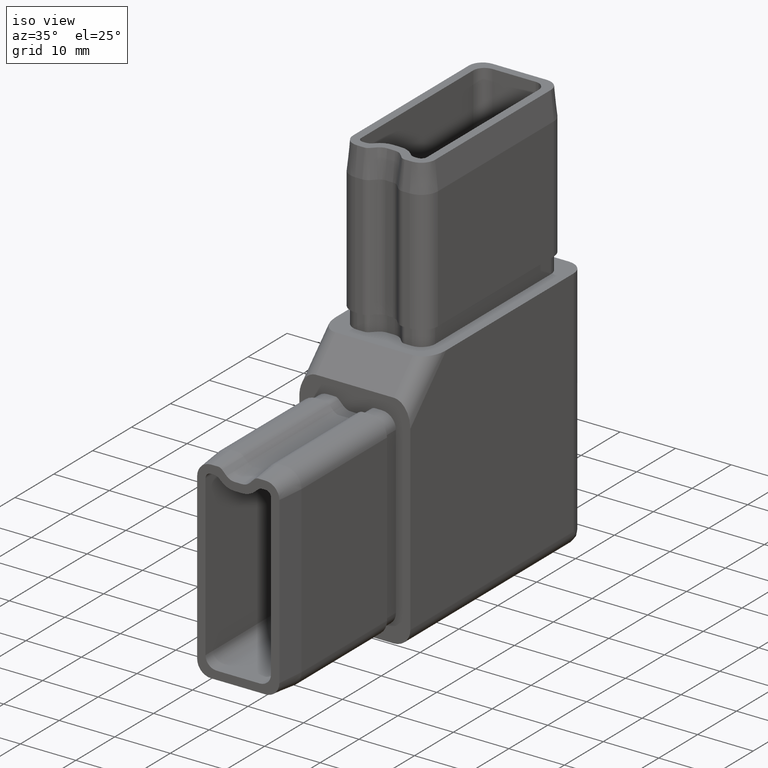
[diagram: clean part render]
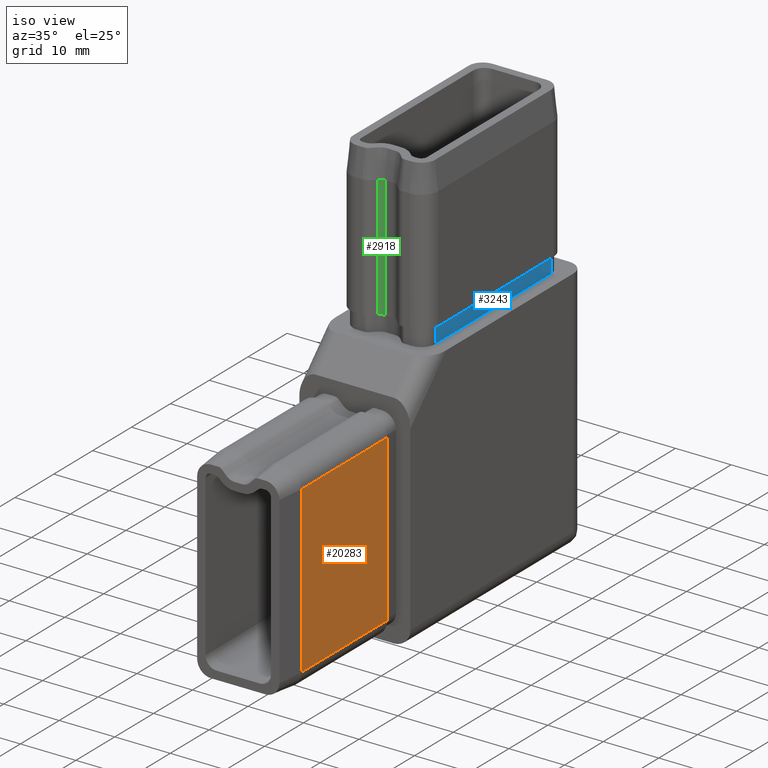
[diagram: same view with three faces highlighted in distinct colors, each labeled with its STEP entity id]
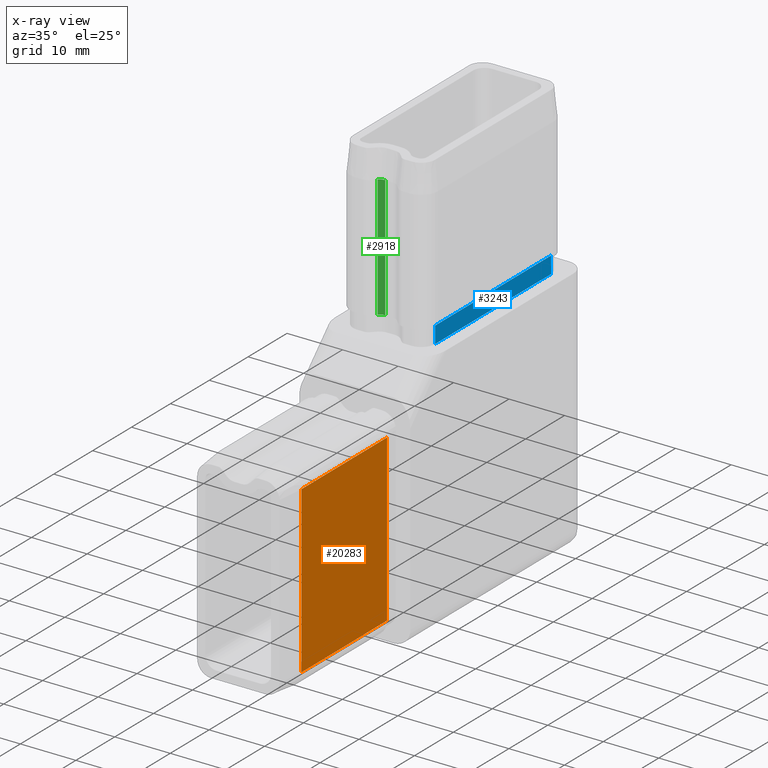
[diagram: x-ray of the same camera — body ghosted, the three highlighted faces saturated]
A machine part, iso view with three faces highlighted in distinct colors.
The next image is the same camera in x-ray (body ghosted, the three faces saturated) — at least one of them is partly hidden behind the body in this view.
Their STEP definitions:

[orange] entity #20283 — the highlighted planar face has unit normal (-1, -0, 0).
#1452 = DIRECTION ( 'NONE',  ( 2.328487887217191400E-016, 0.0000000000000000000, 1.000000000000000000 ) ) ;
#1700 = EDGE_CURVE ( 'NONE', #7561, #4065, #20508, .T. ) ;
#2318 = EDGE_LOOP ( 'NONE', ( #23774, #6665, #11239, #15677 ) ) ;
#3137 = FACE_OUTER_BOUND ( 'NONE', #2318, .T. ) ;
#4065 = VERTEX_POINT ( 'NONE', #11985 ) ;
#6151 = VERTEX_POINT ( 'NONE', #7808 ) ;
#6665 = ORIENTED_EDGE ( 'NONE', *, *, #1700, .F. ) ;
#6751 = VECTOR ( 'NONE', #14962, 1000.000000000000000 ) ;
#7561 = VERTEX_POINT ( 'NONE', #14796 ) ;
#7808 = CARTESIAN_POINT ( 'NONE',  ( 7.899999999999999500, -25.49999999999998900, -17.39999999999999900 ) ) ;
#8209 = DIRECTION ( 'NONE',  ( 2.328487887217190900E-016, -2.328487887217190900E-016, 1.000000000000000000 ) ) ;
#8353 = VECTOR ( 'NONE', #22412, 1000.000000000000000 ) ;
#8763 = CARTESIAN_POINT ( 'NONE',  ( 7.900000000000005700, -52.50000000000000000, 12.39999999999999000 ) ) ;
#8979 = LINE ( 'NONE', #8763, #8353 ) ;
#10423 = CARTESIAN_POINT ( 'NONE',  ( 7.900000000000005700, -25.49999999999999600, 12.40000000000000200 ) ) ;
#11239 = ORIENTED_EDGE ( 'NONE', *, *, #23587, .T. ) ;
#11460 = PLANE ( 'NONE',  #20751 ) ;
#11985 = CARTESIAN_POINT ( 'NONE',  ( 7.900000000000005700, -47.49999999999998600, 12.39999999999999100 ) ) ;
#14796 = CARTESIAN_POINT ( 'NONE',  ( 7.899999999999992400, -47.49999999999998600, -17.40000000000000900 ) ) ;
#14962 = DIRECTION ( 'NONE',  ( 1.746365915412893200E-016, -2.328487887217190900E-016, 1.000000000000000000 ) ) ;
#15113 = VERTEX_POINT ( 'NONE', #10423 ) ;
#15156 = EDGE_CURVE ( 'NONE', #6151, #15113, #22539, .T. ) ;
#15677 = ORIENTED_EDGE ( 'NONE', *, *, #15156, .T. ) ;
#15880 = CARTESIAN_POINT ( 'NONE',  ( 7.899999999999999500, -52.49999999999999300, -17.40000000000000900 ) ) ;
#16433 = VECTOR ( 'NONE', #8209, 1000.000000000000000 ) ;
#17868 = LINE ( 'NONE', #15880, #24605 ) ;
#20283 = ADVANCED_FACE ( 'NONE', ( #3137 ), #11460, .F. ) ;
#20508 = LINE ( 'NONE', #20929, #6751 ) ;
#20751 = AXIS2_PLACEMENT_3D ( 'NONE', #24862, #23237, #1452 ) ;
#20929 = CARTESIAN_POINT ( 'NONE',  ( 7.899999999999992400, -47.49999999999998600, -17.40000000000000900 ) ) ;
#21437 = DIRECTION ( 'NONE',  ( -0.0000000000000000000, 1.000000000000000000, 2.220446049250313100E-016 ) ) ;
#22412 = DIRECTION ( 'NONE',  ( -0.0000000000000000000, 1.000000000000000000, 2.220446049250313100E-016 ) ) ;
#22539 = LINE ( 'NONE', #23834, #16433 ) ;
#23237 = DIRECTION ( 'NONE',  ( -1.000000000000000000, -5.170281729898621200E-032, 2.328487887217191400E-016 ) ) ;
#23587 = EDGE_CURVE ( 'NONE', #7561, #6151, #17868, .T. ) ;
#23774 = ORIENTED_EDGE ( 'NONE', *, *, #25264, .F. ) ;
#23834 = CARTESIAN_POINT ( 'NONE',  ( 7.899999999999999500, -25.49999999999998900, -17.39999999999999900 ) ) ;
#24605 = VECTOR ( 'NONE', #21437, 1000.000000000000000 ) ;
#24862 = CARTESIAN_POINT ( 'NONE',  ( 7.900000000000002100, -52.49999999999999300, -1.349684718946572400E-014 ) ) ;
#25264 = EDGE_CURVE ( 'NONE', #4065, #15113, #8979, .T. ) ;

[blue] entity #3243 — the highlighted planar face has unit normal (1, 0, -0).
#965 = EDGE_CURVE ( 'NONE', #19537, #4240, #9080, .T. ) ;
#1136 = EDGE_CURVE ( 'NONE', #4240, #10688, #25228, .T. ) ;
#1876 = CARTESIAN_POINT ( 'NONE',  ( 7.399999999999998600, 17.39999999999999900, 25.49999999999999600 ) ) ;
#1877 = ORIENTED_EDGE ( 'NONE', *, *, #965, .T. ) ;
#2017 = CARTESIAN_POINT ( 'NONE',  ( 7.399999999999998600, 17.39999999999999900, 22.49999999999999600 ) ) ;
#2133 = FACE_OUTER_BOUND ( 'NONE', #17622, .T. ) ;
#3243 = ADVANCED_FACE ( 'NONE', ( #2133 ), #4647, .T. ) ;
#3929 = VECTOR ( 'NONE', #23617, 1000.000000000000000 ) ;
#3992 = VERTEX_POINT ( 'NONE', #5662 ) ;
#4057 = CARTESIAN_POINT ( 'NONE',  ( 7.400000000000005700, -12.40000000000000200, 25.49999999999999600 ) ) ;
#4240 = VERTEX_POINT ( 'NONE', #18805 ) ;
#4647 = PLANE ( 'NONE',  #19737 ) ;
#5662 = CARTESIAN_POINT ( 'NONE',  ( 7.400000000000005700, -12.40000000000000200, 22.49999999999999600 ) ) ;
#5797 = DIRECTION ( 'NONE',  ( 2.328487887217190900E-016, -1.000000000000000000, 0.0000000000000000000 ) ) ;
#8590 = DIRECTION ( 'NONE',  ( 1.000000000000000000, 2.328487887217190900E-016, -0.0000000000000000000 ) ) ;
#9080 = LINE ( 'NONE', #9906, #13664 ) ;
#9906 = CARTESIAN_POINT ( 'NONE',  ( 7.399999999999998600, 17.39999999999999900, 25.49999999999999600 ) ) ;
#10558 = DIRECTION ( 'NONE',  ( -2.328487887217190900E-016, 1.000000000000000000, 0.0000000000000000000 ) ) ;
#10688 = VERTEX_POINT ( 'NONE', #19859 ) ;
#10896 = CARTESIAN_POINT ( 'NONE',  ( 7.399999999999998600, 17.39999999999999900, 22.49999999999999600 ) ) ;
#11584 = ORIENTED_EDGE ( 'NONE', *, *, #12061, .F. ) ;
#12061 = EDGE_CURVE ( 'NONE', #19537, #3992, #21029, .T. ) ;
#13399 = VECTOR ( 'NONE', #23538, 1000.000000000000000 ) ;
#13664 = VECTOR ( 'NONE', #13839, 1000.000000000000000 ) ;
#13839 = DIRECTION ( 'NONE',  ( 0.0000000000000000000, 0.0000000000000000000, 1.000000000000000000 ) ) ;
#14637 = EDGE_CURVE ( 'NONE', #3992, #10688, #18594, .T. ) ;
#14856 = VECTOR ( 'NONE', #5797, 1000.000000000000000 ) ;
#17622 = EDGE_LOOP ( 'NONE', ( #1877, #20845, #22282, #11584 ) ) ;
#18594 = LINE ( 'NONE', #4057, #13399 ) ;
#18805 = CARTESIAN_POINT ( 'NONE',  ( 7.399999999999998600, 17.39999999999999900, 25.49999999999999600 ) ) ;
#19537 = VERTEX_POINT ( 'NONE', #10896 ) ;
#19737 = AXIS2_PLACEMENT_3D ( 'NONE', #20294, #8590, #10558 ) ;
#19859 = CARTESIAN_POINT ( 'NONE',  ( 7.400000000000005700, -12.40000000000000200, 25.49999999999999600 ) ) ;
#20294 = CARTESIAN_POINT ( 'NONE',  ( 7.399999999999998600, 17.39999999999999900, 25.49999999999999600 ) ) ;
#20845 = ORIENTED_EDGE ( 'NONE', *, *, #1136, .T. ) ;
#21029 = LINE ( 'NONE', #2017, #3929 ) ;
#22282 = ORIENTED_EDGE ( 'NONE', *, *, #14637, .F. ) ;
#23538 = DIRECTION ( 'NONE',  ( 0.0000000000000000000, 0.0000000000000000000, 1.000000000000000000 ) ) ;
#23617 = DIRECTION ( 'NONE',  ( 2.328487887217190900E-016, -1.000000000000000000, 0.0000000000000000000 ) ) ;
#25228 = LINE ( 'NONE', #1876, #14856 ) ;

[green] entity #2918 — the highlighted cylindrical surface (edge-blend (fillet) strip) has radius 1.5 mm, axis along (-0, -0, -1).
#139 = DIRECTION ( 'NONE',  ( 1.000000000000000000, 0.0000000000000000000, 0.0000000000000000000 ) ) ;
#793 = VERTEX_POINT ( 'NONE', #16226 ) ;
#1788 = EDGE_CURVE ( 'NONE', #24208, #793, #8896, .T. ) ;
#1797 = DIRECTION ( 'NONE',  ( -0.0000000000000000000, -0.0000000000000000000, -1.000000000000000000 ) ) ;
#2718 = AXIS2_PLACEMENT_3D ( 'NONE', #3736, #5700, #3574 ) ;
#2918 = ADVANCED_FACE ( 'NONE', ( #13139 ), #17701, .F. ) ;
#3574 = DIRECTION ( 'NONE',  ( -1.000000000000000000, 0.0000000000000000000, 0.0000000000000000000 ) ) ;
#3736 = CARTESIAN_POINT ( 'NONE',  ( -0.6804040507106348100, -15.20172439427028300, 52.49999999999999300 ) ) ;
#3976 = CARTESIAN_POINT ( 'NONE',  ( -1.741064222490453600, -14.14106422249045800, 47.49999999999999300 ) ) ;
#4017 = DIRECTION ( 'NONE',  ( -0.0000000000000000000, -0.0000000000000000000, -1.000000000000000000 ) ) ;
#5700 = DIRECTION ( 'NONE',  ( -0.0000000000000000000, -0.0000000000000000000, -1.000000000000000000 ) ) ;
#5802 = CARTESIAN_POINT ( 'NONE',  ( -1.741064222490453600, -14.14106422249045800, 52.49999999999999300 ) ) ;
#6197 = DIRECTION ( 'NONE',  ( 0.0000000000000000000, 0.0000000000000000000, 1.000000000000000000 ) ) ;
#8132 = AXIS2_PLACEMENT_3D ( 'NONE', #8592, #23878, #14156 ) ;
#8592 = CARTESIAN_POINT ( 'NONE',  ( -0.6804040507106348100, -15.20172439427028300, 47.49999999999999300 ) ) ;
#8896 = LINE ( 'NONE', #15456, #22343 ) ;
#9855 = AXIS2_PLACEMENT_3D ( 'NONE', #13752, #6197, #139 ) ;
#10102 = VECTOR ( 'NONE', #4017, 1000.000000000000000 ) ;
#12095 = VERTEX_POINT ( 'NONE', #17376 ) ;
#12200 = CIRCLE ( 'NONE', #9855, 1.499999999999999600 ) ;
#12978 = EDGE_CURVE ( 'NONE', #793, #12095, #12200, .T. ) ;
#13139 = FACE_OUTER_BOUND ( 'NONE', #21486, .T. ) ;
#13752 = CARTESIAN_POINT ( 'NONE',  ( -0.6804040507106348100, -15.20172439427028300, 25.49999999999999600 ) ) ;
#14156 = DIRECTION ( 'NONE',  ( 1.000000000000000000, 0.0000000000000000000, 0.0000000000000000000 ) ) ;
#14698 = VERTEX_POINT ( 'NONE', #3976 ) ;
#14729 = CIRCLE ( 'NONE', #8132, 1.500000000000001300 ) ;
#15456 = CARTESIAN_POINT ( 'NONE',  ( -0.6804040507106348100, -13.70172439427028300, 52.49999999999999300 ) ) ;
#16226 = CARTESIAN_POINT ( 'NONE',  ( -0.6804040507106348100, -13.70172439427028300, 25.49999999999999600 ) ) ;
#17266 = CARTESIAN_POINT ( 'NONE',  ( -0.6804040507106347000, -13.70172439427028100, 47.49999999999999300 ) ) ;
#17376 = CARTESIAN_POINT ( 'NONE',  ( -1.741064222490453600, -14.14106422249045800, 25.49999999999999600 ) ) ;
#17701 = CYLINDRICAL_SURFACE ( 'NONE', #2718, 1.500000000000000400 ) ;
#18622 = ORIENTED_EDGE ( 'NONE', *, *, #22798, .T. ) ;
#20849 = EDGE_CURVE ( 'NONE', #24208, #14698, #14729, .T. ) ;
#21486 = EDGE_LOOP ( 'NONE', ( #22284, #23086, #18622, #22743 ) ) ;
#22284 = ORIENTED_EDGE ( 'NONE', *, *, #1788, .F. ) ;
#22343 = VECTOR ( 'NONE', #1797, 1000.000000000000000 ) ;
#22743 = ORIENTED_EDGE ( 'NONE', *, *, #12978, .F. ) ;
#22798 = EDGE_CURVE ( 'NONE', #14698, #12095, #24461, .T. ) ;
#23086 = ORIENTED_EDGE ( 'NONE', *, *, #20849, .T. ) ;
#23878 = DIRECTION ( 'NONE',  ( 0.0000000000000000000, 0.0000000000000000000, 1.000000000000000000 ) ) ;
#24208 = VERTEX_POINT ( 'NONE', #17266 ) ;
#24461 = LINE ( 'NONE', #5802, #10102 ) ;